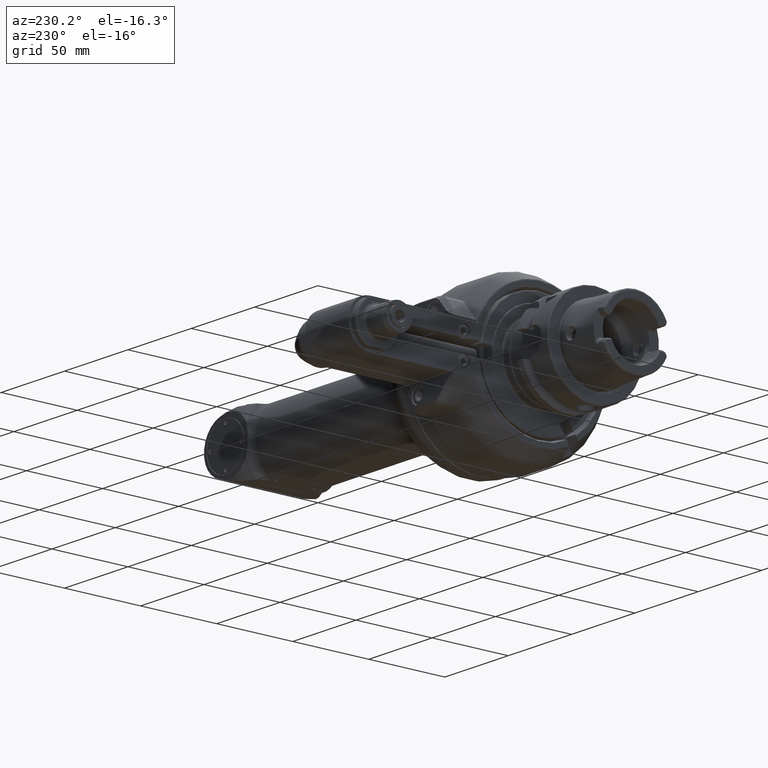
[diagram: clean part render]
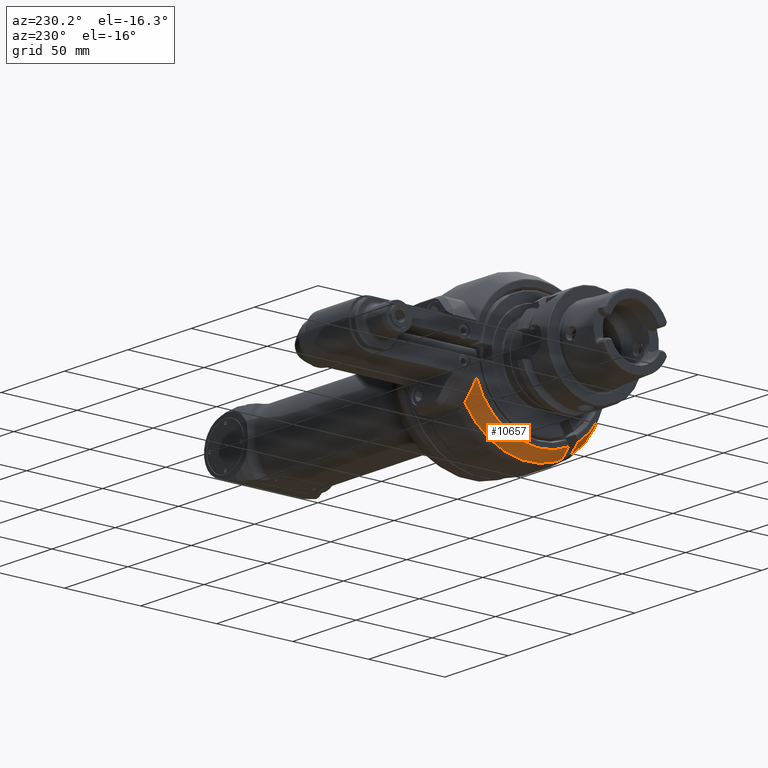
[diagram: same view with one face highlighted and labeled with its STEP entity id]
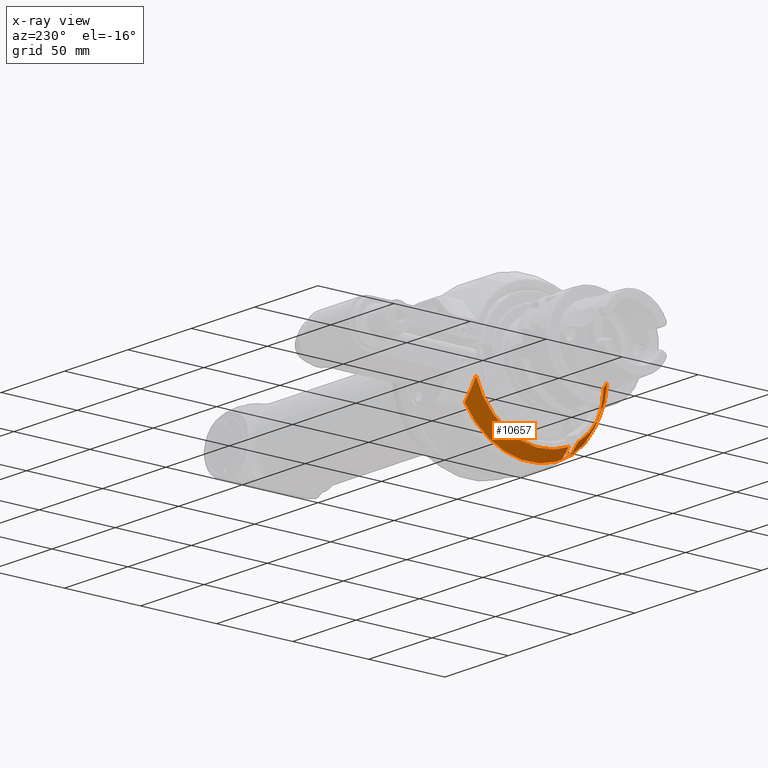
[diagram: x-ray of the same camera — body ghosted, the highlighted face saturated]
A machine part, auxiliary view. The second image highlights one B-rep face of the part: STEP entity #10657.
The next image is the same camera in x-ray: the body ghosted, the highlighted face saturated — about 2% of this face is hidden behind the body in this view.
In plain terms, the highlighted conical surface has half-angle 30 deg.
Its self-contained STEP definition (entity closure, byte-faithful):
#120=(
BOUNDED_CURVE()
B_SPLINE_CURVE(2,(#19341,#19342,#19343),.UNSPECIFIED.,.F.,.F.)
B_SPLINE_CURVE_WITH_KNOTS((3,3),(2.88449166539661,4.73034461554691),
 .UNSPECIFIED.)
CURVE()
GEOMETRIC_REPRESENTATION_ITEM()
RATIONAL_B_SPLINE_CURVE((1.03298555470909,1.03049774891703,1.01131829610192))
REPRESENTATION_ITEM('')
);
#176=B_SPLINE_CURVE_WITH_KNOTS('',3,(#17613,#17614,#17615,#17616,#17617,
#17618,#17619,#17620,#17621,#17622),.UNSPECIFIED.,.F.,.F.,(4,3,3,4),(0.,
0.3333333333333,0.6666666666667,0.999997693045579),.UNSPECIFIED.);
#231=B_SPLINE_CURVE_WITH_KNOTS('',3,(#19368,#19369,#19370,#19371,#19372,
#19373,#19374,#19375,#19376,#19377),.UNSPECIFIED.,.F.,.F.,(4,3,3,4),(7.52542510022059E-6,
0.3333333333333,0.6666666666667,1.),.UNSPECIFIED.);
#232=B_SPLINE_CURVE_WITH_KNOTS('',3,(#19381,#19382,#19383,#19384,#19385,
#19386,#19387,#19388,#19389,#19390),.UNSPECIFIED.,.F.,.F.,(4,3,3,4),(0.,
0.3333333333333,0.6666666666667,0.999992989007416),.UNSPECIFIED.);
#385=CONICAL_SURFACE('',#11686,46.84048999,0.523598775598299);
#2461=FACE_OUTER_BOUND('',#3152,.T.);
#3152=EDGE_LOOP('',(#8493,#8494,#8495,#8496,#8497,#8498,#8499,#8500));
#3857=CIRCLE('',#11681,49.39230484541);
#3861=CIRCLE('',#11687,44.28867513459);
#3862=CIRCLE('',#11688,48.90747728811);
#3863=CIRCLE('',#11689,44.28867513459);
#4415=VERTEX_POINT('',#17610);
#4416=VERTEX_POINT('',#17612);
#4750=VERTEX_POINT('',#19325);
#4751=VERTEX_POINT('',#19340);
#4758=VERTEX_POINT('',#19365);
#4759=VERTEX_POINT('',#19367);
#4760=VERTEX_POINT('',#19378);
#4761=VERTEX_POINT('',#19380);
#5581=EDGE_CURVE('',#4416,#4415,#176,.T.);
#6083=EDGE_CURVE('',#4416,#4750,#3857,.T.);
#6084=EDGE_CURVE('',#4750,#4751,#120,.T.);
#6092=EDGE_CURVE('',#4758,#4415,#3861,.T.);
#6093=EDGE_CURVE('',#4758,#4759,#231,.T.);
#6094=EDGE_CURVE('',#4760,#4759,#3862,.T.);
#6095=EDGE_CURVE('',#4760,#4761,#232,.T.);
#6096=EDGE_CURVE('',#4751,#4761,#3863,.T.);
#8493=ORIENTED_EDGE('',*,*,#6084,.F.);
#8494=ORIENTED_EDGE('',*,*,#6083,.F.);
#8495=ORIENTED_EDGE('',*,*,#5581,.T.);
#8496=ORIENTED_EDGE('',*,*,#6092,.F.);
#8497=ORIENTED_EDGE('',*,*,#6093,.T.);
#8498=ORIENTED_EDGE('',*,*,#6094,.F.);
#8499=ORIENTED_EDGE('',*,*,#6095,.T.);
#8500=ORIENTED_EDGE('',*,*,#6096,.F.);
#10657=ADVANCED_FACE('',(#2461),#385,.T.);
#11681=AXIS2_PLACEMENT_3D('',#19338,#14018,#14019);
#11686=AXIS2_PLACEMENT_3D('',#19364,#14031,#14032);
#11687=AXIS2_PLACEMENT_3D('',#19366,#14033,#14034);
#11688=AXIS2_PLACEMENT_3D('',#19379,#14035,#14036);
#11689=AXIS2_PLACEMENT_3D('',#19391,#14037,#14038);
#14018=DIRECTION('center_axis',(1.,0.,0.));
#14019=DIRECTION('ref_axis',(0.,-0.999538752412674,-0.0303691031364992));
#14031=DIRECTION('center_axis',(1.,0.,0.));
#14032=DIRECTION('ref_axis',(0.,-1.,0.));
#14033=DIRECTION('center_axis',(-1.,0.,0.));
#14034=DIRECTION('ref_axis',(0.,-0.566875606468697,-0.823803402997795));
#14035=DIRECTION('center_axis',(-1.,0.,0.));
#14036=DIRECTION('ref_axis',(0.,-0.436742034135616,-0.899586791598834));
#14037=DIRECTION('center_axis',(-1.,0.,0.));
#14038=DIRECTION('ref_axis',(0.,0.948323693864426,-0.317304540867809));
#17610=CARTESIAN_POINT('',(-215.000000030769,-44.2632663040557,-1.49999994161418));
#17612=CARTESIAN_POINT('',(-206.160266197764,-49.3695157362067,-1.50000010664761));
#17613=CARTESIAN_POINT('Ctrl Pts',(-206.1602783556,-49.36950871544,-1.5));
#17614=CARTESIAN_POINT('Ctrl Pts',(-207.1759979467,-48.78281212368,-1.5));
#17615=CARTESIAN_POINT('Ctrl Pts',(-208.18057303435,-48.2025431401351,-1.5));
#17616=CARTESIAN_POINT('Ctrl Pts',(-209.173898690625,-47.6287619664027,
-1.5));
#17617=CARTESIAN_POINT('Ctrl Pts',(-210.1672243469,-47.0549807926701,-1.5));
#17618=CARTESIAN_POINT('Ctrl Pts',(-211.1493005718,-46.4876874287499,-1.5));
#17619=CARTESIAN_POINT('Ctrl Pts',(-212.1202955277,-45.9267843059198,-1.5));
#17620=CARTESIAN_POINT('Ctrl Pts',(-213.091283763477,-45.3658850650237,
-1.5));
#17621=CARTESIAN_POINT('Ctrl Pts',(-214.051190883637,-44.811375976766,-1.5));
#17622=CARTESIAN_POINT('Ctrl Pts',(-215.00000003113,-44.2632663046841,-1.5));
#19325=CARTESIAN_POINT('',(-206.160254044869,42.0000000019527,-25.9923022715425));
#19338=CARTESIAN_POINT('Origin',(-206.1602540378,0.,0.));
#19340=CARTESIAN_POINT('',(-214.999999999401,41.9999999998448,-14.0529977307585));
#19341=CARTESIAN_POINT('Ctrl Pts',(-206.160254049553,42.,-25.9923022695722));
#19342=CARTESIAN_POINT('Ctrl Pts',(-211.897889894566,42.,-19.6974303595624));
#19343=CARTESIAN_POINT('Ctrl Pts',(-214.99999999909,42.,-14.0529977308296));
#19364=CARTESIAN_POINT('Origin',(-210.5801270189,0.,0.));
#19365=CARTESIAN_POINT('',(-215.000057470123,-25.1061533734176,-36.4851322129059));
#19366=CARTESIAN_POINT('Origin',(-215.,0.,0.));
#19367=CARTESIAN_POINT('',(-207.,-27.42212894174,-40.4965205788));
#19368=CARTESIAN_POINT('Ctrl Pts',(-215.000057527834,-25.1061529848522,
-36.4851325523608));
#19369=CARTESIAN_POINT('Ctrl Pts',(-214.153147934446,-25.3514017454659,
-36.9099158662369));
#19370=CARTESIAN_POINT('Ctrl Pts',(-213.292415073511,-25.6006278822091,
-37.3415881976503));
#19371=CARTESIAN_POINT('Ctrl Pts',(-212.417782596384,-25.8538536681795,
-37.7801881247375));
#19372=CARTESIAN_POINT('Ctrl Pts',(-211.543130372867,-26.107085171174,-38.2187979540011));
#19373=CARTESIAN_POINT('Ctrl Pts',(-210.654577905533,-26.3643165039963,
-38.6643356917479));
#19374=CARTESIAN_POINT('Ctrl Pts',(-209.751665222016,-26.6256808914706,
-39.1170320901425));
#19375=CARTESIAN_POINT('Ctrl Pts',(-208.8487525385,-26.8870452789448,-39.5697284885369));
#19376=CARTESIAN_POINT('Ctrl Pts',(-207.9314796388,-27.1525427210712,-40.0295835475793));
#19377=CARTESIAN_POINT('Ctrl Pts',(-207.,-27.4221289417408,-40.4965205787996));
#19378=CARTESIAN_POINT('',(-207.,-21.35995111525,-43.9965205788));
#19379=CARTESIAN_POINT('Origin',(-207.,0.,0.));
#19380=CARTESIAN_POINT('',(-215.000053582945,-19.0439758254258,-39.9851346518315));
#19381=CARTESIAN_POINT('Ctrl Pts',(-207.,-21.3599511152515,-43.9965205787991));
#19382=CARTESIAN_POINT('Ctrl Pts',(-207.9307941946,-21.0905632739124,-43.5299271506586));
#19383=CARTESIAN_POINT('Ctrl Pts',(-208.84761068265,-20.825197959171,-43.0703009429599));
#19384=CARTESIAN_POINT('Ctrl Pts',(-209.750302263575,-20.5638975979086,
-42.6177154412174));
#19385=CARTESIAN_POINT('Ctrl Pts',(-210.6529938445,-20.3025972366461,-42.1651299394747));
#19386=CARTESIAN_POINT('Ctrl Pts',(-211.5415605183,-20.0453618288627,-41.7195851436882));
#19387=CARTESIAN_POINT('Ctrl Pts',(-212.416443309575,-19.7920635953651,
-41.280859733803));
#19388=CARTESIAN_POINT('Ctrl Pts',(-213.29130769946,-19.5387706894837,-40.8421435516196));
#19389=CARTESIAN_POINT('Ctrl Pts',(-214.152488782439,-19.2894147922688,
-40.4102464684765));
#19390=CARTESIAN_POINT('Ctrl Pts',(-215.000053636655,-19.0439762806162,
-39.9851344961602));
#19391=CARTESIAN_POINT('Origin',(-215.,0.,0.));